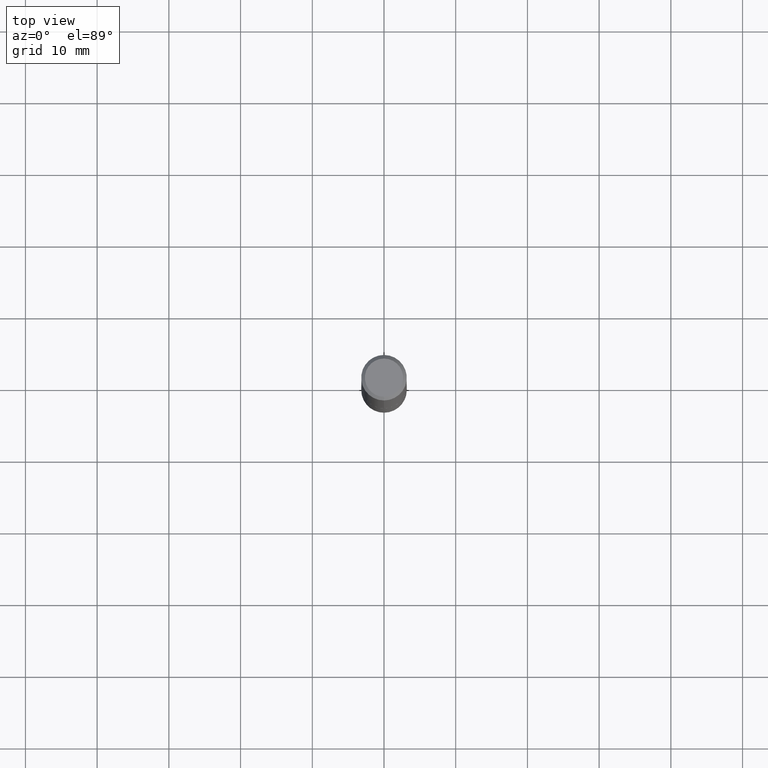
[diagram: clean part render]
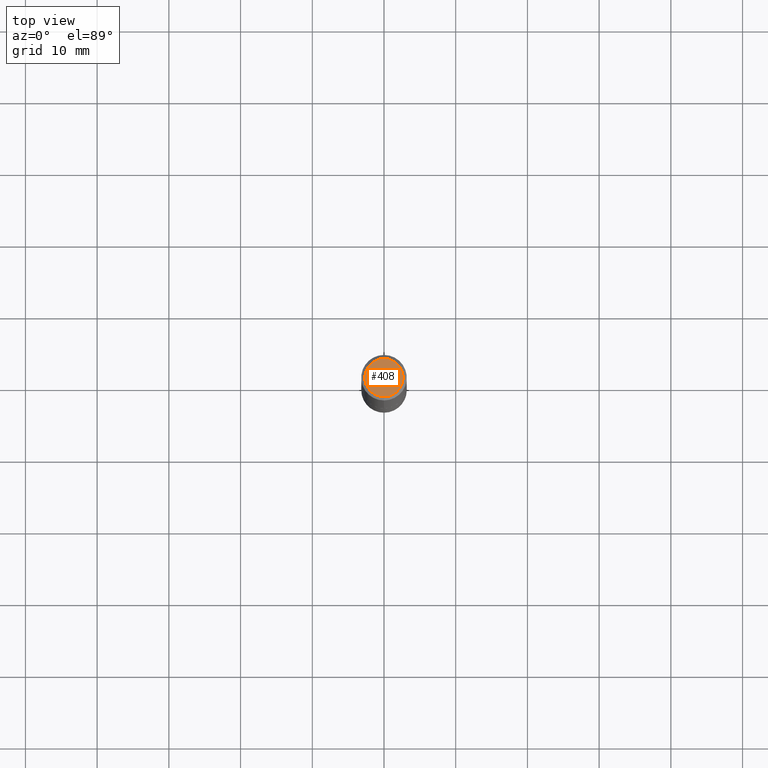
[diagram: same view with one face highlighted and labeled with its STEP entity id]
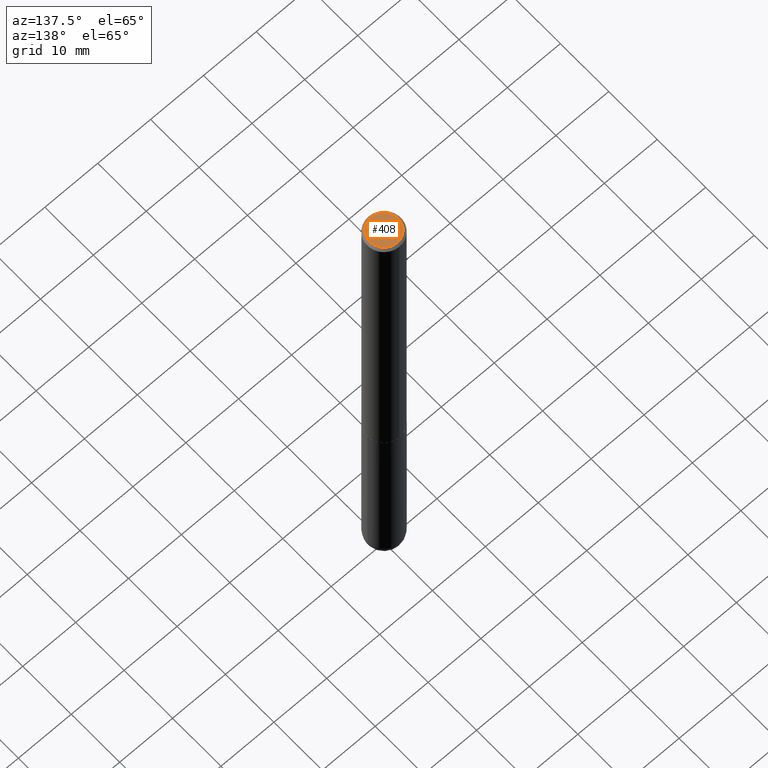
[diagram: same view with one face highlighted and labeled with its STEP entity id]
A machine part, top view. The second image highlights one B-rep face of the part: STEP entity #408.
A second angle (auxiliary view) of the same face is appended — the face is thin or edge-on in the first view.
In plain terms, the highlighted planar face has unit normal (0, -0, -1).
Its self-contained STEP definition (entity closure, byte-faithful):
#49 = EDGE_LOOP ( 'NONE', ( #210, #370 ) ) ;
#57 = DIRECTION ( 'NONE',  ( 2.445237604041377530E-29, -3.491812433472216822E-15, -1.000000000000000000 ) ) ;
#84 = AXIS2_PLACEMENT_3D ( 'NONE', #190, #310, #279 ) ;
#106 = CIRCLE ( 'NONE', #280, 0.1050000000000000239 ) ;
#114 = DIRECTION ( 'NONE',  ( 6.982962677686265922E-15, 1.000000000000000000, -3.491812433472216822E-15 ) ) ;
#118 = VERTEX_POINT ( 'NONE', #183 ) ;
#126 = EDGE_CURVE ( 'NONE', #272, #118, #168, .T. ) ;
#168 = CIRCLE ( 'NONE', #84, 0.1050000000000000239 ) ;
#183 = CARTESIAN_POINT ( 'NONE',  ( -7.889572697437259167E-16, -0.1050000000000000239, 3.624065579605349599E-16 ) ) ;
#190 = CARTESIAN_POINT ( 'NONE',  ( 1.035251872517619265E-46, -1.478345234940713000E-32, -4.233747554047924360E-18 ) ) ;
#193 = CARTESIAN_POINT ( 'NONE',  ( 1.035251872517619265E-46, -1.478345234940713000E-32, -4.233747554047924360E-18 ) ) ;
#199 = PLANE ( 'NONE',  #313 ) ;
#200 = EDGE_CURVE ( 'NONE', #118, #272, #106, .T. ) ;
#210 = ORIENTED_EDGE ( 'NONE', *, *, #126, .T. ) ;
#263 = CARTESIAN_POINT ( 'NONE',  ( 7.332110811570580243E-16, 0.1050000000000000239, -3.687571792916068175E-16 ) ) ;
#269 = FACE_OUTER_BOUND ( 'NONE', #49, .T. ) ;
#272 = VERTEX_POINT ( 'NONE', #284 ) ;
#279 = DIRECTION ( 'NONE',  ( -6.982962677686265133E-15, -1.000000000000000000, 3.491812433472216822E-15 ) ) ;
#280 = AXIS2_PLACEMENT_3D ( 'NONE', #193, #352, #286 ) ;
#284 = CARTESIAN_POINT ( 'NONE',  ( 8.030407079339208295E-16, 0.1050000000000000239, -3.708740530686307701E-16 ) ) ;
#286 = DIRECTION ( 'NONE',  ( -6.982962677686265133E-15, -1.000000000000000000, 3.491812433472216822E-15 ) ) ;
#310 = DIRECTION ( 'NONE',  ( -2.445237604041377810E-29, 3.491812433472216822E-15, 1.000000000000000000 ) ) ;
#313 = AXIS2_PLACEMENT_3D ( 'NONE', #263, #57, #114 ) ;
#352 = DIRECTION ( 'NONE',  ( -2.445237604041377810E-29, 3.491812433472216822E-15, 1.000000000000000000 ) ) ;
#370 = ORIENTED_EDGE ( 'NONE', *, *, #200, .T. ) ;
#408 = ADVANCED_FACE ( 'NONE', ( #269 ), #199, .F. ) ;